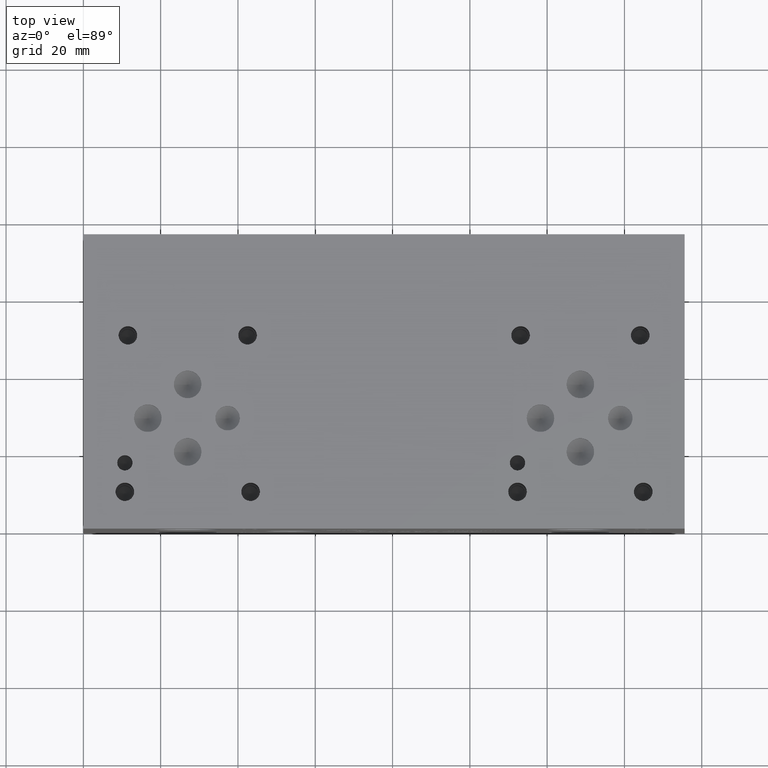
[diagram: clean part render]
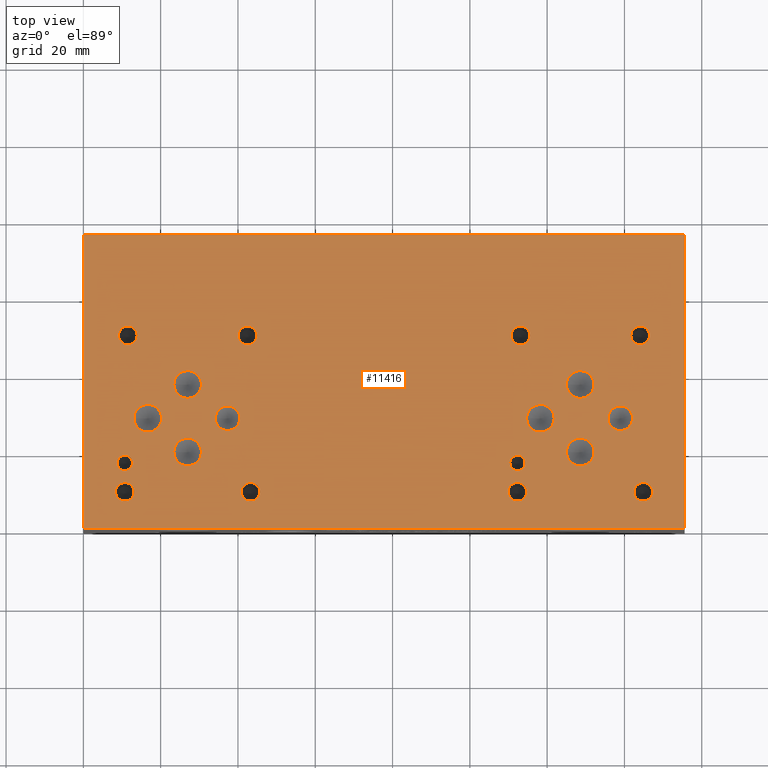
[diagram: same view with one face highlighted and labeled with its STEP entity id]
A machine part, top view. The second image highlights one B-rep face of the part: STEP entity #11416.
In plain terms, the highlighted planar face has unit normal (0, 0, 1).
Its self-contained STEP definition (entity closure, byte-faithful):
#190=CIRCLE('',#11908,1.9812);
#191=CIRCLE('',#11909,1.9812);
#197=CIRCLE('',#11918,2.413);
#198=CIRCLE('',#11919,2.413);
#204=CIRCLE('',#11929,2.413);
#205=CIRCLE('',#11930,2.413);
#211=CIRCLE('',#11940,2.413);
#212=CIRCLE('',#11941,2.413);
#218=CIRCLE('',#11951,2.413);
#219=CIRCLE('',#11952,2.413);
#222=CIRCLE('',#11958,3.175);
#223=CIRCLE('',#11959,3.175);
#226=CIRCLE('',#11964,3.175);
#227=CIRCLE('',#11965,3.175);
#230=CIRCLE('',#11970,3.5687);
#231=CIRCLE('',#11971,3.5687);
#234=CIRCLE('',#11976,3.5687);
#235=CIRCLE('',#11977,3.5687);
#238=CIRCLE('',#11982,3.5687);
#239=CIRCLE('',#11983,3.5687);
#242=CIRCLE('',#11988,3.5687);
#243=CIRCLE('',#11989,3.5687);
#246=CIRCLE('',#11994,3.5687);
#247=CIRCLE('',#11995,3.5687);
#250=CIRCLE('',#12000,3.5687);
#251=CIRCLE('',#12001,3.5687);
#254=CIRCLE('',#12006,1.9812);
#255=CIRCLE('',#12007,1.9812);
#261=CIRCLE('',#12016,2.413);
#262=CIRCLE('',#12017,2.413);
#268=CIRCLE('',#12027,2.413);
#269=CIRCLE('',#12028,2.413);
#275=CIRCLE('',#12038,2.413);
#276=CIRCLE('',#12039,2.413);
#282=CIRCLE('',#12049,2.413);
#283=CIRCLE('',#12050,2.413);
#364=FACE_BOUND('',#1983,.T.);
#365=FACE_BOUND('',#1984,.T.);
#366=FACE_BOUND('',#1985,.T.);
#367=FACE_BOUND('',#1986,.T.);
#368=FACE_BOUND('',#1987,.T.);
#369=FACE_BOUND('',#1988,.T.);
#370=FACE_BOUND('',#1989,.T.);
#371=FACE_BOUND('',#1990,.T.);
#372=FACE_BOUND('',#1991,.T.);
#373=FACE_BOUND('',#1992,.T.);
#374=FACE_BOUND('',#1993,.T.);
#375=FACE_BOUND('',#1994,.T.);
#376=FACE_BOUND('',#1995,.T.);
#377=FACE_BOUND('',#1996,.T.);
#378=FACE_BOUND('',#1997,.T.);
#379=FACE_BOUND('',#1998,.T.);
#380=FACE_BOUND('',#1999,.T.);
#381=FACE_BOUND('',#2000,.T.);
#736=PLANE('',#12056);
#1319=FACE_OUTER_BOUND('',#1982,.T.);
#1982=EDGE_LOOP('',(#10191,#10192,#10193,#10194));
#1983=EDGE_LOOP('',(#10195,#10196));
#1984=EDGE_LOOP('',(#10197,#10198));
#1985=EDGE_LOOP('',(#10199,#10200));
#1986=EDGE_LOOP('',(#10201,#10202));
#1987=EDGE_LOOP('',(#10203,#10204));
#1988=EDGE_LOOP('',(#10205,#10206));
#1989=EDGE_LOOP('',(#10207,#10208));
#1990=EDGE_LOOP('',(#10209,#10210));
#1991=EDGE_LOOP('',(#10211,#10212));
#1992=EDGE_LOOP('',(#10213,#10214));
#1993=EDGE_LOOP('',(#10215,#10216));
#1994=EDGE_LOOP('',(#10217,#10218));
#1995=EDGE_LOOP('',(#10219,#10220));
#1996=EDGE_LOOP('',(#10221,#10222));
#1997=EDGE_LOOP('',(#10223,#10224));
#1998=EDGE_LOOP('',(#10225,#10226));
#1999=EDGE_LOOP('',(#10227,#10228));
#2000=EDGE_LOOP('',(#10229,#10230));
#2036=LINE('',#14609,#3124);
#2096=LINE('',#14884,#3184);
#2405=LINE('',#16852,#3493);
#3089=LINE('',#19494,#4177);
#3124=VECTOR('',#12114,10.);
#3184=VECTOR('',#12228,10.);
#3493=VECTOR('',#12727,10.);
#4177=VECTOR('',#14391,10.);
#4500=VERTEX_POINT('',#14606);
#4501=VERTEX_POINT('',#14608);
#4560=VERTEX_POINT('',#14881);
#4561=VERTEX_POINT('',#14883);
#5435=VERTEX_POINT('',#19193);
#5436=VERTEX_POINT('',#19194);
#5443=VERTEX_POINT('',#19213);
#5444=VERTEX_POINT('',#19214);
#5451=VERTEX_POINT('',#19235);
#5452=VERTEX_POINT('',#19236);
#5459=VERTEX_POINT('',#19257);
#5460=VERTEX_POINT('',#19258);
#5467=VERTEX_POINT('',#19279);
#5468=VERTEX_POINT('',#19280);
#5472=VERTEX_POINT('',#19294);
#5473=VERTEX_POINT('',#19295);
#5477=VERTEX_POINT('',#19307);
#5478=VERTEX_POINT('',#19308);
#5482=VERTEX_POINT('',#19320);
#5483=VERTEX_POINT('',#19321);
#5487=VERTEX_POINT('',#19333);
#5488=VERTEX_POINT('',#19334);
#5492=VERTEX_POINT('',#19346);
#5493=VERTEX_POINT('',#19347);
#5497=VERTEX_POINT('',#19359);
#5498=VERTEX_POINT('',#19360);
#5502=VERTEX_POINT('',#19372);
#5503=VERTEX_POINT('',#19373);
#5507=VERTEX_POINT('',#19385);
#5508=VERTEX_POINT('',#19386);
#5512=VERTEX_POINT('',#19398);
#5513=VERTEX_POINT('',#19399);
#5520=VERTEX_POINT('',#19418);
#5521=VERTEX_POINT('',#19419);
#5528=VERTEX_POINT('',#19440);
#5529=VERTEX_POINT('',#19441);
#5536=VERTEX_POINT('',#19462);
#5537=VERTEX_POINT('',#19463);
#5544=VERTEX_POINT('',#19484);
#5545=VERTEX_POINT('',#19485);
#5596=EDGE_CURVE('',#4501,#4500,#2036,.T.);
#5680=EDGE_CURVE('',#4561,#4560,#2096,.T.);
#6153=EDGE_CURVE('',#4560,#4501,#2405,.T.);
#6970=EDGE_CURVE('',#5435,#5436,#190,.T.);
#6971=EDGE_CURVE('',#5436,#5435,#191,.T.);
#6979=EDGE_CURVE('',#5443,#5444,#197,.T.);
#6980=EDGE_CURVE('',#5444,#5443,#198,.T.);
#6989=EDGE_CURVE('',#5451,#5452,#204,.T.);
#6990=EDGE_CURVE('',#5452,#5451,#205,.T.);
#6999=EDGE_CURVE('',#5459,#5460,#211,.T.);
#7000=EDGE_CURVE('',#5460,#5459,#212,.T.);
#7009=EDGE_CURVE('',#5467,#5468,#218,.T.);
#7010=EDGE_CURVE('',#5468,#5467,#219,.T.);
#7016=EDGE_CURVE('',#5472,#5473,#222,.T.);
#7017=EDGE_CURVE('',#5473,#5472,#223,.T.);
#7022=EDGE_CURVE('',#5477,#5478,#226,.T.);
#7023=EDGE_CURVE('',#5478,#5477,#227,.T.);
#7028=EDGE_CURVE('',#5482,#5483,#230,.T.);
#7029=EDGE_CURVE('',#5483,#5482,#231,.T.);
#7034=EDGE_CURVE('',#5487,#5488,#234,.T.);
#7035=EDGE_CURVE('',#5488,#5487,#235,.T.);
#7040=EDGE_CURVE('',#5492,#5493,#238,.T.);
#7041=EDGE_CURVE('',#5493,#5492,#239,.T.);
#7046=EDGE_CURVE('',#5497,#5498,#242,.T.);
#7047=EDGE_CURVE('',#5498,#5497,#243,.T.);
#7052=EDGE_CURVE('',#5502,#5503,#246,.T.);
#7053=EDGE_CURVE('',#5503,#5502,#247,.T.);
#7058=EDGE_CURVE('',#5507,#5508,#250,.T.);
#7059=EDGE_CURVE('',#5508,#5507,#251,.T.);
#7064=EDGE_CURVE('',#5512,#5513,#254,.T.);
#7065=EDGE_CURVE('',#5513,#5512,#255,.T.);
#7073=EDGE_CURVE('',#5520,#5521,#261,.T.);
#7074=EDGE_CURVE('',#5521,#5520,#262,.T.);
#7083=EDGE_CURVE('',#5528,#5529,#268,.T.);
#7084=EDGE_CURVE('',#5529,#5528,#269,.T.);
#7093=EDGE_CURVE('',#5536,#5537,#275,.T.);
#7094=EDGE_CURVE('',#5537,#5536,#276,.T.);
#7103=EDGE_CURVE('',#5544,#5545,#282,.T.);
#7104=EDGE_CURVE('',#5545,#5544,#283,.T.);
#7108=EDGE_CURVE('',#4500,#4561,#3089,.T.);
#10191=ORIENTED_EDGE('',*,*,#6153,.T.);
#10192=ORIENTED_EDGE('',*,*,#5596,.T.);
#10193=ORIENTED_EDGE('',*,*,#7108,.T.);
#10194=ORIENTED_EDGE('',*,*,#5680,.T.);
#10195=ORIENTED_EDGE('',*,*,#6970,.T.);
#10196=ORIENTED_EDGE('',*,*,#6971,.T.);
#10197=ORIENTED_EDGE('',*,*,#6979,.T.);
#10198=ORIENTED_EDGE('',*,*,#6980,.T.);
#10199=ORIENTED_EDGE('',*,*,#6989,.T.);
#10200=ORIENTED_EDGE('',*,*,#6990,.T.);
#10201=ORIENTED_EDGE('',*,*,#6999,.T.);
#10202=ORIENTED_EDGE('',*,*,#7000,.T.);
#10203=ORIENTED_EDGE('',*,*,#7009,.T.);
#10204=ORIENTED_EDGE('',*,*,#7010,.T.);
#10205=ORIENTED_EDGE('',*,*,#7016,.T.);
#10206=ORIENTED_EDGE('',*,*,#7017,.T.);
#10207=ORIENTED_EDGE('',*,*,#7022,.T.);
#10208=ORIENTED_EDGE('',*,*,#7023,.T.);
#10209=ORIENTED_EDGE('',*,*,#7028,.T.);
#10210=ORIENTED_EDGE('',*,*,#7029,.T.);
#10211=ORIENTED_EDGE('',*,*,#7034,.T.);
#10212=ORIENTED_EDGE('',*,*,#7035,.T.);
#10213=ORIENTED_EDGE('',*,*,#7040,.T.);
#10214=ORIENTED_EDGE('',*,*,#7041,.T.);
#10215=ORIENTED_EDGE('',*,*,#7046,.T.);
#10216=ORIENTED_EDGE('',*,*,#7047,.T.);
#10217=ORIENTED_EDGE('',*,*,#7052,.T.);
#10218=ORIENTED_EDGE('',*,*,#7053,.T.);
#10219=ORIENTED_EDGE('',*,*,#7058,.T.);
#10220=ORIENTED_EDGE('',*,*,#7059,.T.);
#10221=ORIENTED_EDGE('',*,*,#7064,.T.);
#10222=ORIENTED_EDGE('',*,*,#7065,.T.);
#10223=ORIENTED_EDGE('',*,*,#7073,.T.);
#10224=ORIENTED_EDGE('',*,*,#7074,.T.);
#10225=ORIENTED_EDGE('',*,*,#7083,.T.);
#10226=ORIENTED_EDGE('',*,*,#7084,.T.);
#10227=ORIENTED_EDGE('',*,*,#7093,.T.);
#10228=ORIENTED_EDGE('',*,*,#7094,.T.);
#10229=ORIENTED_EDGE('',*,*,#7103,.T.);
#10230=ORIENTED_EDGE('',*,*,#7104,.T.);
#11416=ADVANCED_FACE('',(#1319,#364,#365,#366,#367,#368,#369,#370,#371,
#372,#373,#374,#375,#376,#377,#378,#379,#380,#381),#736,.T.);
#11908=AXIS2_PLACEMENT_3D('',#19195,#14055,#14056);
#11909=AXIS2_PLACEMENT_3D('',#19196,#14057,#14058);
#11918=AXIS2_PLACEMENT_3D('',#19215,#14077,#14078);
#11919=AXIS2_PLACEMENT_3D('',#19216,#14079,#14080);
#11929=AXIS2_PLACEMENT_3D('',#19237,#14102,#14103);
#11930=AXIS2_PLACEMENT_3D('',#19238,#14104,#14105);
#11940=AXIS2_PLACEMENT_3D('',#19259,#14127,#14128);
#11941=AXIS2_PLACEMENT_3D('',#19260,#14129,#14130);
#11951=AXIS2_PLACEMENT_3D('',#19281,#14152,#14153);
#11952=AXIS2_PLACEMENT_3D('',#19282,#14154,#14155);
#11958=AXIS2_PLACEMENT_3D('',#19296,#14169,#14170);
#11959=AXIS2_PLACEMENT_3D('',#19297,#14171,#14172);
#11964=AXIS2_PLACEMENT_3D('',#19309,#14183,#14184);
#11965=AXIS2_PLACEMENT_3D('',#19310,#14185,#14186);
#11970=AXIS2_PLACEMENT_3D('',#19322,#14197,#14198);
#11971=AXIS2_PLACEMENT_3D('',#19323,#14199,#14200);
#11976=AXIS2_PLACEMENT_3D('',#19335,#14211,#14212);
#11977=AXIS2_PLACEMENT_3D('',#19336,#14213,#14214);
#11982=AXIS2_PLACEMENT_3D('',#19348,#14225,#14226);
#11983=AXIS2_PLACEMENT_3D('',#19349,#14227,#14228);
#11988=AXIS2_PLACEMENT_3D('',#19361,#14239,#14240);
#11989=AXIS2_PLACEMENT_3D('',#19362,#14241,#14242);
#11994=AXIS2_PLACEMENT_3D('',#19374,#14253,#14254);
#11995=AXIS2_PLACEMENT_3D('',#19375,#14255,#14256);
#12000=AXIS2_PLACEMENT_3D('',#19387,#14267,#14268);
#12001=AXIS2_PLACEMENT_3D('',#19388,#14269,#14270);
#12006=AXIS2_PLACEMENT_3D('',#19400,#14281,#14282);
#12007=AXIS2_PLACEMENT_3D('',#19401,#14283,#14284);
#12016=AXIS2_PLACEMENT_3D('',#19420,#14303,#14304);
#12017=AXIS2_PLACEMENT_3D('',#19421,#14305,#14306);
#12027=AXIS2_PLACEMENT_3D('',#19442,#14328,#14329);
#12028=AXIS2_PLACEMENT_3D('',#19443,#14330,#14331);
#12038=AXIS2_PLACEMENT_3D('',#19464,#14353,#14354);
#12039=AXIS2_PLACEMENT_3D('',#19465,#14355,#14356);
#12049=AXIS2_PLACEMENT_3D('',#19486,#14378,#14379);
#12050=AXIS2_PLACEMENT_3D('',#19487,#14380,#14381);
#12056=AXIS2_PLACEMENT_3D('',#19497,#14396,#14397);
#12114=DIRECTION('',(0.,1.,0.));
#12228=DIRECTION('',(0.,-1.,0.));
#12727=DIRECTION('',(1.,0.,0.));
#14055=DIRECTION('center_axis',(0.,0.,-1.));
#14056=DIRECTION('ref_axis',(1.,0.,0.));
#14057=DIRECTION('center_axis',(0.,0.,-1.));
#14058=DIRECTION('ref_axis',(1.,0.,0.));
#14077=DIRECTION('center_axis',(0.,0.,-1.));
#14078=DIRECTION('ref_axis',(1.,0.,0.));
#14079=DIRECTION('center_axis',(0.,0.,-1.));
#14080=DIRECTION('ref_axis',(1.,0.,0.));
#14102=DIRECTION('center_axis',(0.,0.,-1.));
#14103=DIRECTION('ref_axis',(1.,0.,0.));
#14104=DIRECTION('center_axis',(0.,0.,-1.));
#14105=DIRECTION('ref_axis',(1.,0.,0.));
#14127=DIRECTION('center_axis',(0.,0.,-1.));
#14128=DIRECTION('ref_axis',(1.,0.,0.));
#14129=DIRECTION('center_axis',(0.,0.,-1.));
#14130=DIRECTION('ref_axis',(1.,0.,0.));
#14152=DIRECTION('center_axis',(0.,0.,-1.));
#14153=DIRECTION('ref_axis',(1.,0.,0.));
#14154=DIRECTION('center_axis',(0.,0.,-1.));
#14155=DIRECTION('ref_axis',(1.,0.,0.));
#14169=DIRECTION('center_axis',(0.,0.,-1.));
#14170=DIRECTION('ref_axis',(1.,0.,0.));
#14171=DIRECTION('center_axis',(0.,0.,-1.));
#14172=DIRECTION('ref_axis',(1.,0.,0.));
#14183=DIRECTION('center_axis',(0.,0.,-1.));
#14184=DIRECTION('ref_axis',(1.,0.,0.));
#14185=DIRECTION('center_axis',(0.,0.,-1.));
#14186=DIRECTION('ref_axis',(1.,0.,0.));
#14197=DIRECTION('center_axis',(0.,0.,-1.));
#14198=DIRECTION('ref_axis',(1.,0.,0.));
#14199=DIRECTION('center_axis',(0.,0.,-1.));
#14200=DIRECTION('ref_axis',(1.,0.,0.));
#14211=DIRECTION('center_axis',(0.,0.,-1.));
#14212=DIRECTION('ref_axis',(1.,0.,0.));
#14213=DIRECTION('center_axis',(0.,0.,-1.));
#14214=DIRECTION('ref_axis',(1.,0.,0.));
#14225=DIRECTION('center_axis',(0.,0.,-1.));
#14226=DIRECTION('ref_axis',(1.,0.,0.));
#14227=DIRECTION('center_axis',(0.,0.,-1.));
#14228=DIRECTION('ref_axis',(1.,0.,0.));
#14239=DIRECTION('center_axis',(0.,0.,-1.));
#14240=DIRECTION('ref_axis',(1.,0.,0.));
#14241=DIRECTION('center_axis',(0.,0.,-1.));
#14242=DIRECTION('ref_axis',(1.,0.,0.));
#14253=DIRECTION('center_axis',(0.,0.,-1.));
#14254=DIRECTION('ref_axis',(1.,0.,0.));
#14255=DIRECTION('center_axis',(0.,0.,-1.));
#14256=DIRECTION('ref_axis',(1.,0.,0.));
#14267=DIRECTION('center_axis',(0.,0.,-1.));
#14268=DIRECTION('ref_axis',(1.,0.,0.));
#14269=DIRECTION('center_axis',(0.,0.,-1.));
#14270=DIRECTION('ref_axis',(1.,0.,0.));
#14281=DIRECTION('center_axis',(0.,0.,-1.));
#14282=DIRECTION('ref_axis',(1.,0.,0.));
#14283=DIRECTION('center_axis',(0.,0.,-1.));
#14284=DIRECTION('ref_axis',(1.,0.,0.));
#14303=DIRECTION('center_axis',(0.,0.,-1.));
#14304=DIRECTION('ref_axis',(1.,0.,0.));
#14305=DIRECTION('center_axis',(0.,0.,-1.));
#14306=DIRECTION('ref_axis',(1.,0.,0.));
#14328=DIRECTION('center_axis',(0.,0.,-1.));
#14329=DIRECTION('ref_axis',(1.,0.,0.));
#14330=DIRECTION('center_axis',(0.,0.,-1.));
#14331=DIRECTION('ref_axis',(1.,0.,0.));
#14353=DIRECTION('center_axis',(0.,0.,-1.));
#14354=DIRECTION('ref_axis',(1.,0.,0.));
#14355=DIRECTION('center_axis',(0.,0.,-1.));
#14356=DIRECTION('ref_axis',(1.,0.,0.));
#14378=DIRECTION('center_axis',(0.,0.,-1.));
#14379=DIRECTION('ref_axis',(1.,0.,0.));
#14380=DIRECTION('center_axis',(0.,0.,-1.));
#14381=DIRECTION('ref_axis',(1.,0.,0.));
#14391=DIRECTION('',(-1.,0.,0.));
#14396=DIRECTION('center_axis',(0.,0.,1.));
#14397=DIRECTION('ref_axis',(1.,0.,0.));
#14606=CARTESIAN_POINT('',(155.575,76.2,76.2));
#14608=CARTESIAN_POINT('',(155.575,0.,76.2));
#14609=CARTESIAN_POINT('',(155.575,0.,76.2));
#14881=CARTESIAN_POINT('',(0.,0.,76.2));
#14883=CARTESIAN_POINT('',(0.,76.2,76.2));
#14884=CARTESIAN_POINT('',(0.,76.2,76.2));
#16852=CARTESIAN_POINT('',(0.,0.,76.2));
#19193=CARTESIAN_POINT('',(114.3,17.018,76.2));
#19194=CARTESIAN_POINT('',(110.3376,17.018,76.2));
#19195=CARTESIAN_POINT('Origin',(112.3188,17.018,76.2));
#19196=CARTESIAN_POINT('Origin',(112.3188,17.018,76.2));
#19213=CARTESIAN_POINT('',(147.2692,9.525,76.2));
#19214=CARTESIAN_POINT('',(142.4432,9.525,76.2));
#19215=CARTESIAN_POINT('Origin',(144.8562,9.525,76.2));
#19216=CARTESIAN_POINT('Origin',(144.8562,9.525,76.2));
#19235=CARTESIAN_POINT('',(115.5192,50.0126,76.2));
#19236=CARTESIAN_POINT('',(110.6932,50.0126,76.2));
#19237=CARTESIAN_POINT('Origin',(113.1062,50.0126,76.2));
#19238=CARTESIAN_POINT('Origin',(113.1062,50.0126,76.2));
#19257=CARTESIAN_POINT('',(146.4818,50.0126,76.2));
#19258=CARTESIAN_POINT('',(141.6558,50.0126,76.2));
#19259=CARTESIAN_POINT('Origin',(144.0688,50.0126,76.2));
#19260=CARTESIAN_POINT('Origin',(144.0688,50.0126,76.2));
#19279=CARTESIAN_POINT('',(114.7318,9.525,76.2));
#19280=CARTESIAN_POINT('',(109.9058,9.525,76.2));
#19281=CARTESIAN_POINT('Origin',(112.3188,9.525,76.2));
#19282=CARTESIAN_POINT('Origin',(112.3188,9.525,76.2));
#19294=CARTESIAN_POINT('',(40.4876,28.575,76.2));
#19295=CARTESIAN_POINT('',(34.1376,28.575,76.2));
#19296=CARTESIAN_POINT('Origin',(37.3126,28.575,76.2));
#19297=CARTESIAN_POINT('Origin',(37.3126,28.575,76.2));
#19307=CARTESIAN_POINT('',(142.0876,28.575,76.2));
#19308=CARTESIAN_POINT('',(135.7376,28.575,76.2));
#19309=CARTESIAN_POINT('Origin',(138.9126,28.575,76.2));
#19310=CARTESIAN_POINT('Origin',(138.9126,28.575,76.2));
#19320=CARTESIAN_POINT('',(132.1435,37.3126,76.2));
#19321=CARTESIAN_POINT('',(125.0061,37.3126,76.2));
#19322=CARTESIAN_POINT('Origin',(128.5748,37.3126,76.2));
#19323=CARTESIAN_POINT('Origin',(128.5748,37.3126,76.2));
#19333=CARTESIAN_POINT('',(30.5435,19.8374,76.2));
#19334=CARTESIAN_POINT('',(23.4061,19.8374,76.2));
#19335=CARTESIAN_POINT('Origin',(26.9748,19.8374,76.2));
#19336=CARTESIAN_POINT('Origin',(26.9748,19.8374,76.2));
#19346=CARTESIAN_POINT('',(20.2311,28.575,76.2));
#19347=CARTESIAN_POINT('',(13.0937,28.575,76.2));
#19348=CARTESIAN_POINT('Origin',(16.6624,28.575,76.2));
#19349=CARTESIAN_POINT('Origin',(16.6624,28.575,76.2));
#19359=CARTESIAN_POINT('',(30.5435,37.3126,76.2));
#19360=CARTESIAN_POINT('',(23.4061,37.3126,76.2));
#19361=CARTESIAN_POINT('Origin',(26.9748,37.3126,76.2));
#19362=CARTESIAN_POINT('Origin',(26.9748,37.3126,76.2));
#19372=CARTESIAN_POINT('',(121.8311,28.575,76.2));
#19373=CARTESIAN_POINT('',(114.6937,28.575,76.2));
#19374=CARTESIAN_POINT('Origin',(118.2624,28.575,76.2));
#19375=CARTESIAN_POINT('Origin',(118.2624,28.575,76.2));
#19385=CARTESIAN_POINT('',(132.1435,19.8374,76.2));
#19386=CARTESIAN_POINT('',(125.0061,19.8374,76.2));
#19387=CARTESIAN_POINT('Origin',(128.5748,19.8374,76.2));
#19388=CARTESIAN_POINT('Origin',(128.5748,19.8374,76.2));
#19398=CARTESIAN_POINT('',(12.7,17.018,76.2));
#19399=CARTESIAN_POINT('',(8.7376,17.018,76.2));
#19400=CARTESIAN_POINT('Origin',(10.7188,17.018,76.2));
#19401=CARTESIAN_POINT('Origin',(10.7188,17.018,76.2));
#19418=CARTESIAN_POINT('',(45.6692,9.525,76.2));
#19419=CARTESIAN_POINT('',(40.8432,9.525,76.2));
#19420=CARTESIAN_POINT('Origin',(43.2562,9.525,76.2));
#19421=CARTESIAN_POINT('Origin',(43.2562,9.525,76.2));
#19440=CARTESIAN_POINT('',(13.9192,50.0126,76.2));
#19441=CARTESIAN_POINT('',(9.0932,50.0126,76.2));
#19442=CARTESIAN_POINT('Origin',(11.5062,50.0126,76.2));
#19443=CARTESIAN_POINT('Origin',(11.5062,50.0126,76.2));
#19462=CARTESIAN_POINT('',(44.8818,50.0126,76.2));
#19463=CARTESIAN_POINT('',(40.0558,50.0126,76.2));
#19464=CARTESIAN_POINT('Origin',(42.4688,50.0126,76.2));
#19465=CARTESIAN_POINT('Origin',(42.4688,50.0126,76.2));
#19484=CARTESIAN_POINT('',(13.1318,9.525,76.2));
#19485=CARTESIAN_POINT('',(8.3058,9.525,76.2));
#19486=CARTESIAN_POINT('Origin',(10.7188,9.525,76.2));
#19487=CARTESIAN_POINT('Origin',(10.7188,9.525,76.2));
#19494=CARTESIAN_POINT('',(155.575,76.2,76.2));
#19497=CARTESIAN_POINT('Origin',(77.7875,38.1,76.2));